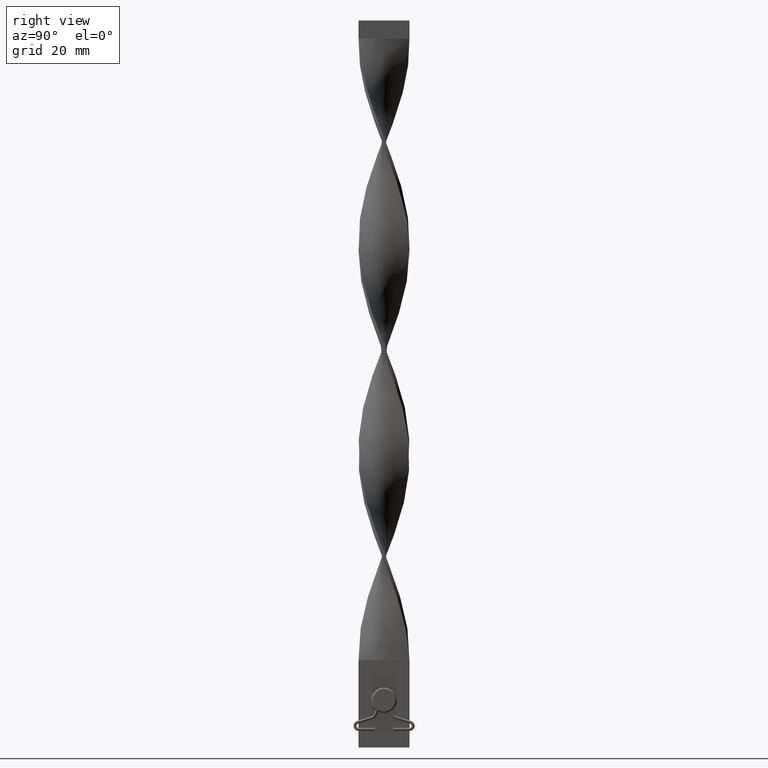
[diagram: clean part render]
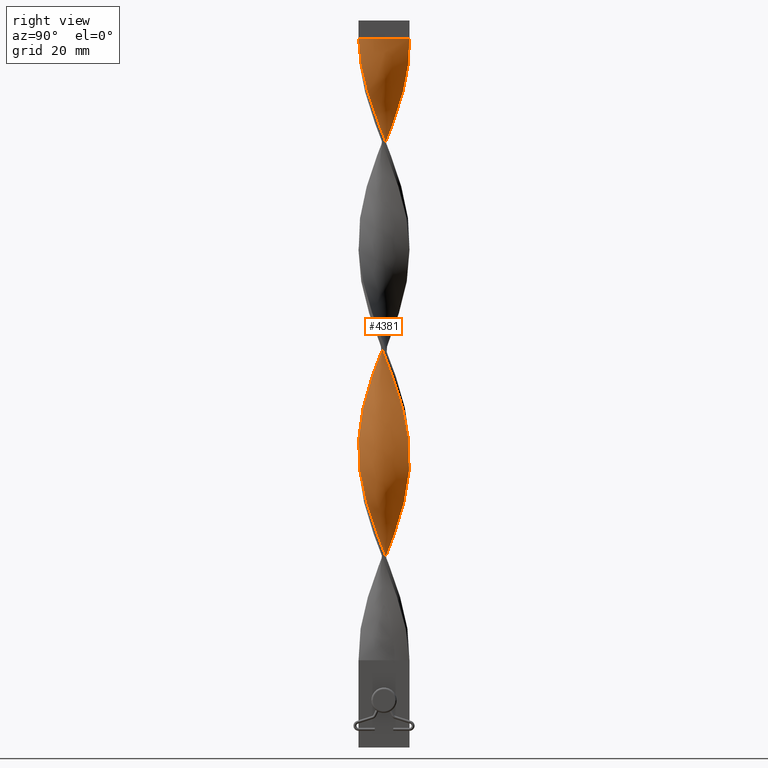
[diagram: same view with one face highlighted and labeled with its STEP entity id]
A machine part, right view. The second image highlights one B-rep face of the part: STEP entity #4381.
In plain terms, the highlighted face is a freeform B-spline surface patch.
Its self-contained STEP definition (entity closure, byte-faithful):
#12 = CARTESIAN_POINT ( 'NONE',  ( 1.707941120174619964, -6.806830182251990990, 191.8333333333333144 ) ) ;
#46 = CARTESIAN_POINT ( 'NONE',  ( 1.333846089643348165, 6.917212388074880813, 142.7499999999999716 ) ) ;
#68 = CARTESIAN_POINT ( 'NONE',  ( 5.040917296989577245, 4.882535489365265491, 39.83333333333332860 ) ) ;
#71 = CARTESIAN_POINT ( 'NONE',  ( 2.514743296130104167, 6.580504446253506501, 145.9166666666666572 ) ) ;
#90 = CARTESIAN_POINT ( 'NONE',  ( -1.333846089643348387, -6.917212388074880813, 85.75000000000000000 ) ) ;
#92 = CARTESIAN_POINT ( 'NONE',  ( -0.5000000000000007772, 7.000000000000000888, 137.9999999999999716 ) ) ;
#97 = ORIENTED_EDGE ( 'NONE', *, *, #4602, .T. ) ;
#98 = CARTESIAN_POINT ( 'NONE',  ( -2.514743296130105943, 6.580504446253503836, 73.08333333333332860 ) ) ;
#114 = CARTESIAN_POINT ( 'NONE',  ( 0.1124206446814672855, 7.043744331762963107, 25.58333333333333215 ) ) ;
#116 = CARTESIAN_POINT ( 'NONE',  ( 1.112420644681468840, -6.956255668237039558, 193.4166666666666572 ) ) ;
#122 = CARTESIAN_POINT ( 'NONE',  ( -6.980478359918920184, -0.7231333671624097237, 49.33333333333333570 ) ) ;
#130 = CARTESIAN_POINT ( 'NONE',  ( -0.1124206446814656618, -7.043744331762963107, 82.58333333333334281 ) ) ;
#133 = CARTESIAN_POINT ( 'NONE',  ( -5.812177826491070398, -3.933012701892223628, 100.0000000000000000 ) ) ;
#142 = CARTESIAN_POINT ( 'NONE',  ( -5.683704906676115165, -4.116491046246286700, 39.83333333333332860 ) ) ;
#151 = CARTESIAN_POINT ( 'NONE',  ( -5.468083801572038105, 4.441512372106930506, 63.58333333333332149 ) ) ;
#158 = CARTESIAN_POINT ( 'NONE',  ( -2.303461595667763984, -6.657404696266944200, 28.75000000000000000 ) ) ;
#172 = CARTESIAN_POINT ( 'NONE',  ( -0.7231333671624116111, 6.980478359918920184, 77.83333333333334281 ) ) ;
#178 = CARTESIAN_POINT ( 'NONE',  ( 5.812177826491070398, -3.933012701892219187, 119.0000000000000000 ) ) ;
#192 = CARTESIAN_POINT ( 'NONE',  ( -6.043851206728636960, 3.619231300085455239, 120.5833333333333144 ) ) ;
#194 = CARTESIAN_POINT ( 'NONE',  ( -6.806830182251990102, 1.707941120174615302, 55.66666666666666430 ) ) ;
#199 = CARTESIAN_POINT ( 'NONE',  ( 1.333846089643349053, -6.917212388074879037, 133.2500000000000000 ) ) ;
#216 = CARTESIAN_POINT ( 'NONE',  ( -4.116491046246284924, -5.683704906676116053, 93.66666666666667140 ) ) ;
#218 = CARTESIAN_POINT ( 'NONE',  ( 6.043851206728633407, 3.619231300085458347, 98.41666666666664298 ) ) ;
#223 = CARTESIAN_POINT ( 'NONE',  ( 5.468083801572036329, -4.441512372106931394, 120.5833333333333144 ) ) ;
#241 = CARTESIAN_POINT ( 'NONE',  ( 6.917212388074880813, -1.333846089643347277, 57.25000000000000000 ) ) ;
#244 = CARTESIAN_POINT ( 'NONE',  ( -4.441512372106931394, -5.468083801572036329, 35.08333333333333570 ) ) ;
#253 = CARTESIAN_POINT ( 'NONE',  ( -6.406838273838524778, 2.863987313672633928, 172.8333333333333144 ) ) ;
#267 = CARTESIAN_POINT ( 'NONE',  ( 2.863987313672637036, -6.406838273838524778, 74.66666666666665719 ) ) ;
#269 = CARTESIAN_POINT ( 'NONE',  ( -5.812177826491071286, 3.933012701892216523, 176.0000000000000000 ) ) ;
#275 = CARTESIAN_POINT ( 'NONE',  ( 5.683704906676114277, 4.116491046246287588, 96.83333333333332860 ) ) ;
#291 = CARTESIAN_POINT ( 'NONE',  ( 6.748858417164194989, -1.924294692886726610, 58.83333333333333570 ) ) ;
#292 = CARTESIAN_POINT ( 'NONE',  ( 5.683704906676116053, -4.116491046246285812, 179.1666666666666572 ) ) ;
#295 = CARTESIAN_POINT ( 'NONE',  ( -4.441512372106931394, -5.468083801572036329, 149.0833333333333144 ) ) ;
#314 = CARTESIAN_POINT ( 'NONE',  ( 1.333846089643348165, 6.917212388074880813, 28.75000000000000000 ) ) ;
#315 = CARTESIAN_POINT ( 'NONE',  ( 6.748858417164194989, -1.924294692886726610, 172.8333333333333144 ) ) ;
#346 = CARTESIAN_POINT ( 'NONE',  ( -6.748858417164191437, -1.924294692886728164, 160.1666666666666572 ) ) ;
#367 = CARTESIAN_POINT ( 'NONE',  ( -6.312177826491068622, -3.066987298107782145, 157.0000000000000000 ) ) ;
#389 = CARTESIAN_POINT ( 'NONE',  ( 0.5000000000000016653, -7.000000000000000888, 194.9999999999999716 ) ) ;
#397 = CARTESIAN_POINT ( 'NONE',  ( -6.748858417164195878, 1.924294692886722613, 115.8333333333333428 ) ) ;
#421 = CARTESIAN_POINT ( 'NONE',  ( 6.406838273838524778, 2.863987313672637036, 160.1666666666666572 ) ) ;
#422 = EDGE_LOOP ( 'NONE', ( #789, #97, #3428, #455 ) ) ;
#427 = CARTESIAN_POINT ( 'NONE',  ( -1.333846089643351496, 6.917212388074878149, 76.25000000000000000 ) ) ;
#442 = CARTESIAN_POINT ( 'NONE',  ( 6.980478359918921960, -0.7231333671624075032, 169.6666666666666572 ) ) ;
#455 = ORIENTED_EDGE ( 'NONE', *, *, #480, .F. ) ;
#461 = CARTESIAN_POINT ( 'NONE',  ( -4.116491046246284924, -5.683704906676116053, 93.66666666666667140 ) ) ;
#463 = CARTESIAN_POINT ( 'NONE',  ( -6.043851206728636960, 3.619231300085454794, 120.5833333333333286 ) ) ;
#470 = CARTESIAN_POINT ( 'NONE',  ( -0.7231333671624116111, 6.980478359918920184, 77.83333333333334281 ) ) ;
#480 = EDGE_CURVE ( 'NONE', #1588, #4142, #3925, .T. ) ;
#487 = CARTESIAN_POINT ( 'NONE',  ( 4.116491046246284924, 5.683704906676116053, 36.66666666666666430 ) ) ;
#489 = CARTESIAN_POINT ( 'NONE',  ( -1.707941120174617744, 6.806830182251991879, 134.8333333333333428 ) ) ;
#496 = CARTESIAN_POINT ( 'NONE',  ( 3.933012701892216523, 5.812177826491071286, 90.50000000000000000 ) ) ;
#504 = CARTESIAN_POINT ( 'NONE',  ( -3.424513031677504316, -6.156271851410103579, 31.91666666666666430 ) ) ;
#511 = CARTESIAN_POINT ( 'NONE',  ( -6.806830182251990102, 1.707941120174615302, 55.66666666666666430 ) ) ;
#520 = CARTESIAN_POINT ( 'NONE',  ( 4.613750792407116386, 5.323558606623596923, 38.24999999999999289 ) ) ;
#522 = CARTESIAN_POINT ( 'NONE',  ( 4.441512372106930506, 5.468083801572038105, 92.08333333333332860 ) ) ;
#529 = CARTESIAN_POINT ( 'NONE',  ( 6.956255668237037781, -1.112420644681464843, 111.0833333333333286 ) ) ;
#544 = CARTESIAN_POINT ( 'NONE',  ( -6.580504446253503836, -2.514743296130105055, 44.58333333333333570 ) ) ;
#550 = CARTESIAN_POINT ( 'NONE',  ( -3.424513031677503871, -6.156271851410103579, 145.9166666666666572 ) ) ;
#564 = CARTESIAN_POINT ( 'NONE',  ( -2.303461595667765316, 6.657404696266945976, 133.2500000000000000 ) ) ;
#566 = CARTESIAN_POINT ( 'NONE',  ( -3.933012701892217411, -5.812177826491071286, 33.50000000000000000 ) ) ;
#572 = CARTESIAN_POINT ( 'NONE',  ( 6.580504446253502060, 2.514743296130109496, 101.5833333333333286 ) ) ;
#590 = CARTESIAN_POINT ( 'NONE',  ( 3.619231300085454794, 6.043851206728636960, 35.08333333333333570 ) ) ;
#591 = CARTESIAN_POINT ( 'NONE',  ( -6.806830182251991879, -1.707941120174617300, 106.3333333333333286 ) ) ;
#593 = CARTESIAN_POINT ( 'NONE',  ( 6.406838273838525666, -2.863987313672629931, 115.8333333333333428 ) ) ;
#598 = CARTESIAN_POINT ( 'NONE',  ( 0.7231333671624095016, -6.980478359918920184, 134.8333333333333428 ) ) ;
#615 = CARTESIAN_POINT ( 'NONE',  ( 7.043744331762962219, -0.1124206446814662030, 54.08333333333332860 ) ) ;
#618 = CARTESIAN_POINT ( 'NONE',  ( 0.7231333671624095016, -6.980478359918920184, 134.8333333333333428 ) ) ;
#626 = CARTESIAN_POINT ( 'NONE',  ( -1.707941120174615302, -6.806830182251990102, 141.1666666666666572 ) ) ;
#639 = CARTESIAN_POINT ( 'NONE',  ( 4.441512372106936724, -5.468083801572035441, 69.91666666666664298 ) ) ;
#642 = CARTESIAN_POINT ( 'NONE',  ( -6.956255668237037781, 1.112420644681466175, 168.0833333333333428 ) ) ;
#661 = CARTESIAN_POINT ( 'NONE',  ( 7.000000000000000888, 0.5000000000000012212, 166.4999999999999716 ) ) ;
#664 = CARTESIAN_POINT ( 'NONE',  ( -4.613750792407117274, 5.323558606623594258, 180.7500000000000000 ) ) ;
#683 = CARTESIAN_POINT ( 'NONE',  ( -3.066987298107778592, -6.312177826491073063, 90.50000000000000000 ) ) ;
#685 = CARTESIAN_POINT ( 'NONE',  ( 5.812177826491071286, 3.933012701892220964, 157.0000000000000000 ) ) ;
#693 = CARTESIAN_POINT ( 'NONE',  ( 0.5000000000000004441, -2.333333333333334814, 194.9999999999999716 ) ) ;
#716 = CARTESIAN_POINT ( 'NONE',  ( -4.882535489365261938, -5.040917296989577245, 150.6666666666666572 ) ) ;
#738 = CARTESIAN_POINT ( 'NONE',  ( 2.863987313672637036, -6.406838273838524778, 188.6666666666666572 ) ) ;
#745 = CARTESIAN_POINT ( 'NONE',  ( -6.806830182251991879, -1.707941120174617300, 106.3333333333333286 ) ) ;
#760 = CARTESIAN_POINT ( 'NONE',  ( 0.5000000000000016653, -7.000000000000000888, 194.9999999999999716 ) ) ;
#764 = CARTESIAN_POINT ( 'NONE',  ( -6.312177826491071286, 3.066987298107781257, 119.0000000000000000 ) ) ;
#788 = CARTESIAN_POINT ( 'NONE',  ( 5.683704906676116053, -4.116491046246285812, 179.1666666666666572 ) ) ;
#789 = ORIENTED_EDGE ( 'NONE', *, *, #1913, .T. ) ;
#804 = B_SPLINE_CURVE_WITH_KNOTS ( 'NONE', 3,
 ( #3128, #693, #1038, #4533 ),
 .UNSPECIFIED., .F., .F.,
 ( 4, 4 ),
 ( 0.000000000000000000, 1.000000000000000000 ),
 .UNSPECIFIED. ) ;
#806 = CARTESIAN_POINT ( 'NONE',  ( 5.683704906676116053, -4.116491046246285812, 65.16666666666667140 ) ) ;
#808 = CARTESIAN_POINT ( 'NONE',  ( -6.657404696266945976, -2.303461595667764872, 104.7500000000000142 ) ) ;
#814 = CARTESIAN_POINT ( 'NONE',  ( 2.303461595667763984, 6.657404696266944200, 85.75000000000000000 ) ) ;
#828 = CARTESIAN_POINT ( 'NONE',  ( 1.707941120174619964, -6.806830182251990990, 77.83333333333334281 ) ) ;
#831 = CARTESIAN_POINT ( 'NONE',  ( -6.956255668237039558, -1.112420644681469284, 107.9166666666666572 ) ) ;
#837 = CARTESIAN_POINT ( 'NONE',  ( -1.112420644681466619, -6.956255668237037781, 25.58333333333333215 ) ) ;
#853 = CARTESIAN_POINT ( 'NONE',  ( 5.468083801572036329, 4.441512372106934059, 41.41666666666667140 ) ) ;
#855 = CARTESIAN_POINT ( 'NONE',  ( -6.956255668237037781, 1.112420644681466175, 54.08333333333332860 ) ) ;
#872 = CARTESIAN_POINT ( 'NONE',  ( 5.812177826491071286, 3.933012701892220964, 43.00000000000000000 ) ) ;
#874 = CARTESIAN_POINT ( 'NONE',  ( 6.956255668237037781, -1.112420644681465065, 111.0833333333333286 ) ) ;
#880 = CARTESIAN_POINT ( 'NONE',  ( 6.312177826491067734, 3.066987298107784365, 100.0000000000000000 ) ) ;
#893 = CARTESIAN_POINT ( 'NONE',  ( 2.303461595667763984, 6.657404696266944200, 85.75000000000000000 ) ) ;
#900 = CARTESIAN_POINT ( 'NONE',  ( 6.980478359918920184, 0.7231333671624092796, 106.3333333333333286 ) ) ;
#919 = CARTESIAN_POINT ( 'NONE',  ( -3.066987298107780813, 6.312177826491069510, 71.50000000000001421 ) ) ;
#924 = CARTESIAN_POINT ( 'NONE',  ( -5.040917296989577245, 4.882535489365262826, 179.1666666666666572 ) ) ;
#941 = CARTESIAN_POINT ( 'NONE',  ( 6.999999999999999112, -0.4999999999999977240, 109.4999999999999858 ) ) ;
#946 = CARTESIAN_POINT ( 'NONE',  ( -6.917212388074879037, -1.333846089643349497, 161.7499999999999716 ) ) ;
#964 = CARTESIAN_POINT ( 'NONE',  ( 6.312177826491072175, -3.066987298107778592, 62.00000000000000000 ) ) ;
#970 = CARTESIAN_POINT ( 'NONE',  ( -6.999999999999999112, 0.4999999999999986122, 166.4999999999999716 ) ) ;
#990 = CARTESIAN_POINT ( 'NONE',  ( 0.1124206446814698945, -7.043744331762961330, 136.4166666666666856 ) ) ;
#1010 = CARTESIAN_POINT ( 'NONE',  ( -2.863987313672633928, -6.406838273838524778, 144.3333333333333428 ) ) ;
#1030 = CARTESIAN_POINT ( 'NONE',  ( 3.933012701892220075, -5.812177826491071286, 71.50000000000001421 ) ) ;
#1034 = CARTESIAN_POINT ( 'NONE',  ( 0.4999999999999981681, 6.999999999999999112, 194.9999999999999716 ) ) ;
#1038 = CARTESIAN_POINT ( 'NONE',  ( 0.4999999999999993339, 2.333333333333333037, 194.9999999999999716 ) ) ;
#1056 = CARTESIAN_POINT ( 'NONE',  ( 4.116491046246284924, 5.683704906676116053, 150.6666666666666572 ) ) ;
#1084 = CARTESIAN_POINT ( 'NONE',  ( 5.040917296989577245, 4.882535489365265491, 153.8333333333333144 ) ) ;
#1109 = CARTESIAN_POINT ( 'NONE',  ( -3.933012701892223628, 5.812177826491069510, 128.5000000000000000 ) ) ;
#1128 = CARTESIAN_POINT ( 'NONE',  ( 0.5000000000000016653, -7.000000000000000888, 80.99999999999998579 ) ) ;
#1130 = CARTESIAN_POINT ( 'NONE',  ( -7.043744331762962219, 0.1124206446814653426, 111.0833333333333286 ) ) ;
#1153 = CARTESIAN_POINT ( 'NONE',  ( 1.333846089643348165, 6.917212388074880813, 28.75000000000000000 ) ) ;
#1156 = CARTESIAN_POINT ( 'NONE',  ( -6.156271851410102691, -3.424513031677510089, 101.5833333333333428 ) ) ;
#1163 = CARTESIAN_POINT ( 'NONE',  ( 0.4999999999999981681, 6.999999999999999112, 80.99999999999998579 ) ) ;
#1174 = CARTESIAN_POINT ( 'NONE',  ( 7.000000000000000888, 0.5000000000000012212, 52.50000000000000000 ) ) ;
#1176 = CARTESIAN_POINT ( 'NONE',  ( 5.812177826491071286, 3.933012701892220964, 157.0000000000000000 ) ) ;
#1194 = CARTESIAN_POINT ( 'NONE',  ( -1.112420644681469728, 6.956255668237039558, 136.4166666666666856 ) ) ;
#1203 = CARTESIAN_POINT ( 'NONE',  ( -4.882535489365261938, -5.040917296989577245, 36.66666666666666430 ) ) ;
#1219 = CARTESIAN_POINT ( 'NONE',  ( 0.7231333671624077253, 6.980478359918921960, 27.16666666666666430 ) ) ;
#1221 = CARTESIAN_POINT ( 'NONE',  ( 0.4999999999999981681, 6.999999999999999112, 80.99999999999998579 ) ) ;
#1227 = CARTESIAN_POINT ( 'NONE',  ( -3.619231300085458791, 6.043851206728633407, 69.91666666666665719 ) ) ;
#1238 = CARTESIAN_POINT ( 'NONE',  ( -4.116491046246287588, 5.683704906676114277, 68.33333333333332860 ) ) ;
#1244 = CARTESIAN_POINT ( 'NONE',  ( -7.043744331762961330, -0.1124206446814702137, 164.9166666666666572 ) ) ;
#1259 = CARTESIAN_POINT ( 'NONE',  ( -3.619231300085458347, 6.043851206728633407, 69.91666666666664298 ) ) ;
#1266 = CARTESIAN_POINT ( 'NONE',  ( -5.468083801572038105, 4.441512372106930506, 177.5833333333333144 ) ) ;
#1285 = CARTESIAN_POINT ( 'NONE',  ( -4.613750792407115497, -5.323558606623597811, 95.25000000000000000 ) ) ;
#1286 = CARTESIAN_POINT ( 'NONE',  ( 1.924294692886726610, 6.748858417164194989, 144.3333333333333428 ) ) ;
#1288 = CARTESIAN_POINT ( 'NONE',  ( 6.917212388074879037, 1.333846089643348609, 104.7500000000000142 ) ) ;
#1297 = CARTESIAN_POINT ( 'NONE',  ( 6.806830182251990990, -1.707941120174612859, 112.6666666666666714 ) ) ;
#1310 = CARTESIAN_POINT ( 'NONE',  ( 4.116491046246284924, 5.683704906676116053, 36.66666666666666430 ) ) ;
#1311 = CARTESIAN_POINT ( 'NONE',  ( -3.933012701892223628, 5.812177826491069510, 128.5000000000000000 ) ) ;
#1318 = CARTESIAN_POINT ( 'NONE',  ( 3.066987298107784365, -6.312177826491066845, 128.5000000000000000 ) ) ;
#1334 = CARTESIAN_POINT ( 'NONE',  ( -6.580504446253507389, 2.514743296130100170, 117.4166666666666714 ) ) ;
#1337 = CARTESIAN_POINT ( 'NONE',  ( -6.657404696266944200, 2.303461595667763095, 171.2499999999999716 ) ) ;
#1342 = CARTESIAN_POINT ( 'NONE',  ( -4.116491046246287588, 5.683704906676114277, 182.3333333333333144 ) ) ;
#1360 = CARTESIAN_POINT ( 'NONE',  ( 3.933012701892220075, -5.812177826491071286, 185.5000000000000000 ) ) ;
#1364 = CARTESIAN_POINT ( 'NONE',  ( -6.580504446253503836, -2.514743296130105055, 158.5833333333333144 ) ) ;
#1383 = CARTESIAN_POINT ( 'NONE',  ( 2.303461595667767980, -6.657404696266944200, 76.25000000000000000 ) ) ;
#1384 = CARTESIAN_POINT ( 'NONE',  ( 7.043744331762963107, -0.1124206446814662030, 168.0833333333333428 ) ) ;
#1386 = CARTESIAN_POINT ( 'NONE',  ( -3.619231300085458347, 6.043851206728633407, 183.9166666666666572 ) ) ;
#1410 = CARTESIAN_POINT ( 'NONE',  ( -6.917212388074879037, -1.333846089643349497, 161.7499999999999716 ) ) ;
#1421 = CARTESIAN_POINT ( 'NONE',  ( -0.4999999999999990563, -6.999999999999999112, 24.00000000000000000 ) ) ;
#1467 = CARTESIAN_POINT ( 'NONE',  ( 5.040917296989577245, 4.882535489365265491, 153.8333333333333144 ) ) ;
#1484 = CARTESIAN_POINT ( 'NONE',  ( 6.043851206728638736, -3.619231300085453906, 63.58333333333332860 ) ) ;
#1487 = CARTESIAN_POINT ( 'NONE',  ( -5.683704906676116941, 4.116491046246284924, 122.1666666666666714 ) ) ;
#1492 = DIRECTION ( 'NONE',  ( 1.239088197126290817E-16, -1.000000000000000000, 0.000000000000000000 ) ) ;
#1494 = CARTESIAN_POINT ( 'NONE',  ( -3.933012701892217411, -5.812177826491071286, 33.50000000000000000 ) ) ;
#1508 = CARTESIAN_POINT ( 'NONE',  ( -0.7231333671624053938, -6.980478359918922848, 84.16666666666667140 ) ) ;
#1510 = CARTESIAN_POINT ( 'NONE',  ( 4.441512372106936724, -5.468083801572035441, 183.9166666666666572 ) ) ;
#1519 = CARTESIAN_POINT ( 'NONE',  ( -6.406838273838524778, 2.863987313672633928, 58.83333333333333570 ) ) ;
#1533 = CARTESIAN_POINT ( 'NONE',  ( 4.441512372106936724, -5.468083801572034552, 69.91666666666665719 ) ) ;
#1535 = CARTESIAN_POINT ( 'NONE',  ( 7.000000000000000888, 0.5000000000000012212, 166.4999999999999716 ) ) ;
#1543 = CARTESIAN_POINT ( 'NONE',  ( -7.043744331762961330, -0.1124206446814702137, 50.91666666666665719 ) ) ;
#1552 = CARTESIAN_POINT ( 'NONE',  ( -5.812177826491070398, -3.933012701892223628, 100.0000000000000000 ) ) ;
#1554 = CARTESIAN_POINT ( 'NONE',  ( 3.424513031677507424, -6.156271851410104468, 187.0833333333333144 ) ) ;
#1562 = CARTESIAN_POINT ( 'NONE',  ( 4.441512372106930506, 5.468083801572038105, 92.08333333333332860 ) ) ;
#1573 = CARTESIAN_POINT ( 'NONE',  ( -6.748858417164191437, -1.924294692886728164, 46.16666666666667140 ) ) ;
#1588 = VERTEX_POINT ( 'NONE', #1636 ) ;
#1596 = CARTESIAN_POINT ( 'NONE',  ( 0.1124206446814672855, 7.043744331762963107, 139.5833333333333428 ) ) ;
#1598 = CARTESIAN_POINT ( 'NONE',  ( 3.424513031677503427, 6.156271851410104468, 88.91666666666667140 ) ) ;
#1603 = CARTESIAN_POINT ( 'NONE',  ( 6.043851206728633407, 3.619231300085458791, 98.41666666666665719 ) ) ;
#1617 = CARTESIAN_POINT ( 'NONE',  ( -6.156271851410104468, 3.424513031677504316, 60.41666666666667140 ) ) ;
#1623 = CARTESIAN_POINT ( 'NONE',  ( -4.882535489365261938, -5.040917296989577245, 150.6666666666666572 ) ) ;
#1636 = CARTESIAN_POINT ( 'NONE',  ( -0.5000000000000007772, 7.000000000000000888, 24.00000000000000000 ) ) ;
#1642 = CARTESIAN_POINT ( 'NONE',  ( 6.956255668237039558, 1.112420644681469950, 50.91666666666665719 ) ) ;
#1643 = CARTESIAN_POINT ( 'NONE',  ( -1.112420644681469728, 6.956255668237039558, 136.4166666666666572 ) ) ;
#1645 = CARTESIAN_POINT ( 'NONE',  ( -2.863987313672633928, -6.406838273838524778, 30.33333333333333215 ) ) ;
#1652 = CARTESIAN_POINT ( 'NONE',  ( 0.1124206446814698945, -7.043744331762961330, 136.4166666666666572 ) ) ;
#1669 = VECTOR ( 'NONE', #1492, 1000.000000000000000 ) ;
#1673 = CARTESIAN_POINT ( 'NONE',  ( 0.5000000000000016653, -7.000000000000000888, 80.99999999999998579 ) ) ;
#1674 = CARTESIAN_POINT ( 'NONE',  ( -5.683704906676116941, 4.116491046246284924, 122.1666666666666714 ) ) ;
#1676 = CARTESIAN_POINT ( 'NONE',  ( -2.303461595667763984, -6.657404696266944200, 28.75000000000000000 ) ) ;
#1684 = CARTESIAN_POINT ( 'NONE',  ( 5.040917296989578134, -4.882535489365261938, 122.1666666666666714 ) ) ;
#1697 = CARTESIAN_POINT ( 'NONE',  ( 4.613750792407116386, 5.323558606623596923, 38.24999999999998579 ) ) ;
#1699 = CARTESIAN_POINT ( 'NONE',  ( -1.112420644681466619, -6.956255668237037781, 139.5833333333333712 ) ) ;
#1704 = CARTESIAN_POINT ( 'NONE',  ( 2.514743296130109496, -6.580504446253502060, 130.0833333333333144 ) ) ;
#1719 = CARTESIAN_POINT ( 'NONE',  ( 5.683704906676116053, -4.116491046246285812, 65.16666666666667140 ) ) ;
#1720 = CARTESIAN_POINT ( 'NONE',  ( 4.882535489365266379, -5.040917296989576357, 182.3333333333333144 ) ) ;
#1723 = CARTESIAN_POINT ( 'NONE',  ( 3.066987298107784365, -6.312177826491066845, 128.5000000000000000 ) ) ;
#1742 = CARTESIAN_POINT ( 'NONE',  ( 3.066987298107779925, 6.312177826491072175, 33.50000000000000000 ) ) ;
#1746 = CARTESIAN_POINT ( 'NONE',  ( 2.514743296130109051, -6.580504446253502060, 130.0833333333333144 ) ) ;
#1754 = CARTESIAN_POINT ( 'NONE',  ( 0.4999999999999981681, 6.999999999999999112, 194.9999999999999716 ) ) ;
#1768 = CARTESIAN_POINT ( 'NONE',  ( 6.980478359918921960, -0.7231333671624075032, 169.6666666666666572 ) ) ;
#1791 = CARTESIAN_POINT ( 'NONE',  ( 3.066987298107779925, 6.312177826491072175, 147.5000000000000000 ) ) ;
#1817 = CARTESIAN_POINT ( 'NONE',  ( 6.956255668237039558, 1.112420644681469950, 164.9166666666666572 ) ) ;
#1825 = CARTESIAN_POINT ( 'NONE',  ( -2.863987313672641033, 6.406838273838523001, 131.6666666666666572 ) ) ;
#1849 = CARTESIAN_POINT ( 'NONE',  ( 6.917212388074880813, -1.333846089643347277, 171.2499999999999716 ) ) ;
#1869 = CARTESIAN_POINT ( 'NONE',  ( 6.657404696266945976, 2.303461595667765760, 47.75000000000000000 ) ) ;
#1872 = CARTESIAN_POINT ( 'NONE',  ( 6.312177826491072175, -3.066987298107778592, 176.0000000000000000 ) ) ;
#1878 = CARTESIAN_POINT ( 'NONE',  ( -5.468083801572038105, 4.441512372106930506, 63.58333333333332860 ) ) ;
#1892 = CARTESIAN_POINT ( 'NONE',  ( -2.514743296130103278, -6.580504446253507389, 88.91666666666667140 ) ) ;
#1894 = CARTESIAN_POINT ( 'NONE',  ( 2.303461595667767980, -6.657404696266944200, 190.2499999999999432 ) ) ;
#1901 = CARTESIAN_POINT ( 'NONE',  ( 1.112420644681465287, 6.956255668237037781, 82.58333333333334281 ) ) ;
#1913 = EDGE_CURVE ( 'NONE', #1588, #2193, #2334, .T. ) ;
#1916 = CARTESIAN_POINT ( 'NONE',  ( 0.7231333671624077253, 6.980478359918921960, 141.1666666666666572 ) ) ;
#1922 = CARTESIAN_POINT ( 'NONE',  ( -6.956255668237037781, 1.112420644681465953, 54.08333333333332860 ) ) ;
#1932 = CARTESIAN_POINT ( 'NONE',  ( -7.043744331762961330, -0.1124206446814702137, 50.91666666666665719 ) ) ;
#1940 = CARTESIAN_POINT ( 'NONE',  ( -5.812177826491071286, 3.933012701892216523, 62.00000000000000000 ) ) ;
#1952 = CARTESIAN_POINT ( 'NONE',  ( 4.613750792407118162, -5.323558606623593370, 123.7500000000000000 ) ) ;
#1958 = CARTESIAN_POINT ( 'NONE',  ( 6.156271851410107132, -3.424513031677500763, 117.4166666666666714 ) ) ;
#1974 = CARTESIAN_POINT ( 'NONE',  ( -6.917212388074881702, 1.333846089643344834, 114.2499999999999858 ) ) ;
#1976 = CARTESIAN_POINT ( 'NONE',  ( -1.112420644681466619, -6.956255668237037781, 25.58333333333333215 ) ) ;
#1982 = CARTESIAN_POINT ( 'NONE',  ( -0.7231333671624116111, 6.980478359918920184, 191.8333333333333144 ) ) ;
#1999 = CARTESIAN_POINT ( 'NONE',  ( -4.882535489365267267, 5.040917296989574581, 125.3333333333333286 ) ) ;
#2001 = CARTESIAN_POINT ( 'NONE',  ( 4.882535489365261938, 5.040917296989577245, 93.66666666666667140 ) ) ;
#2006 = CARTESIAN_POINT ( 'NONE',  ( 6.657404696266945088, -2.303461595667760431, 114.2499999999999858 ) ) ;
#2022 = CARTESIAN_POINT ( 'NONE',  ( 6.657404696266945976, 2.303461595667765760, 47.75000000000000000 ) ) ;
#2023 = CARTESIAN_POINT ( 'NONE',  ( -7.043744331762963107, 0.1124206446814653426, 111.0833333333333286 ) ) ;
#2025 = CARTESIAN_POINT ( 'NONE',  ( 3.933012701892216523, 5.812177826491071286, 90.50000000000000000 ) ) ;
#2030 = CARTESIAN_POINT ( 'NONE',  ( -1.112420644681466619, -6.956255668237037781, 139.5833333333333428 ) ) ;
#2047 = CARTESIAN_POINT ( 'NONE',  ( 6.980478359918921960, -0.7231333671624075032, 55.66666666666666430 ) ) ;
#2049 = CARTESIAN_POINT ( 'NONE',  ( -7.043744331762961330, -0.1124206446814702137, 164.9166666666666572 ) ) ;
#2056 = CARTESIAN_POINT ( 'NONE',  ( -6.657404696266944200, 2.303461595667763095, 171.2499999999999716 ) ) ;
#2070 = CARTESIAN_POINT ( 'NONE',  ( -0.7231333671624116111, 6.980478359918920184, 191.8333333333333144 ) ) ;
#2091 = CARTESIAN_POINT ( 'NONE',  ( 6.043851206728638736, -3.619231300085453906, 177.5833333333333144 ) ) ;
#2114 = CARTESIAN_POINT ( 'NONE',  ( 6.312177826491072175, -3.066987298107778592, 176.0000000000000000 ) ) ;
#2118 = CARTESIAN_POINT ( 'NONE',  ( -2.303461595667763984, -6.657404696266944200, 142.7499999999999716 ) ) ;
#2138 = CARTESIAN_POINT ( 'NONE',  ( 6.917212388074880813, -1.333846089643347277, 171.2499999999999716 ) ) ;
#2161 = CARTESIAN_POINT ( 'NONE',  ( 1.112420644681468840, -6.956255668237039558, 193.4166666666666572 ) ) ;
#2169 = CARTESIAN_POINT ( 'NONE',  ( -6.580504446253507389, 2.514743296130100170, 117.4166666666666714 ) ) ;
#2192 = CARTESIAN_POINT ( 'NONE',  ( 6.156271851410104468, 3.424513031677506980, 158.5833333333333144 ) ) ;
#2193 = VERTEX_POINT ( 'NONE', #1421 ) ;
#2210 = CARTESIAN_POINT ( 'NONE',  ( 1.112420644681468840, -6.956255668237039558, 79.41666666666665719 ) ) ;
#2212 = CARTESIAN_POINT ( 'NONE',  ( 6.657404696266945976, 2.303461595667765760, 161.7499999999999716 ) ) ;
#2218 = CARTESIAN_POINT ( 'NONE',  ( -6.156271851410104468, 3.424513031677503871, 60.41666666666666430 ) ) ;
#2231 = CARTESIAN_POINT ( 'NONE',  ( -3.066987298107778592, -6.312177826491073063, 90.50000000000000000 ) ) ;
#2234 = CARTESIAN_POINT ( 'NONE',  ( 4.882535489365266379, -5.040917296989576357, 182.3333333333333144 ) ) ;
#2240 = CARTESIAN_POINT ( 'NONE',  ( 2.863987313672633483, 6.406838273838524778, 87.33333333333331439 ) ) ;
#2251 = CARTESIAN_POINT ( 'NONE',  ( -5.040917296989576357, -4.882535489365266379, 96.83333333333332860 ) ) ;
#2253 = CARTESIAN_POINT ( 'NONE',  ( -2.303461595667765316, 6.657404696266945976, 133.2500000000000000 ) ) ;
#2278 = CARTESIAN_POINT ( 'NONE',  ( 6.657404696266945088, -2.303461595667760431, 114.2499999999999858 ) ) ;
#2284 = CARTESIAN_POINT ( 'NONE',  ( -6.657404696266944200, 2.303461595667763095, 57.25000000000000000 ) ) ;
#2291 = CARTESIAN_POINT ( 'NONE',  ( 6.406838273838524778, 2.863987313672637036, 46.16666666666667140 ) ) ;
#2293 = CARTESIAN_POINT ( 'NONE',  ( -1.333846089643351496, 6.917212388074878149, 76.25000000000000000 ) ) ;
#2299 = CARTESIAN_POINT ( 'NONE',  ( -4.441512372106931394, -5.468083801572036329, 149.0833333333333144 ) ) ;
#2311 = CARTESIAN_POINT ( 'NONE',  ( -6.980478359918922848, 0.7231333671624050607, 112.6666666666666714 ) ) ;
#2313 = CARTESIAN_POINT ( 'NONE',  ( 1.707941120174613303, 6.806830182251990990, 84.16666666666667140 ) ) ;
#2319 = CARTESIAN_POINT ( 'NONE',  ( 6.748858417164191437, 1.924294692886732161, 103.1666666666666572 ) ) ;
#2334 = LINE ( 'NONE', #3750, #1669 ) ;
#2336 = CARTESIAN_POINT ( 'NONE',  ( -7.000000000000000888, -0.5000000000000021094, 109.4999999999999858 ) ) ;
#2338 = CARTESIAN_POINT ( 'NONE',  ( -2.514743296130105499, 6.580504446253503836, 73.08333333333334281 ) ) ;
#2343 = CARTESIAN_POINT ( 'NONE',  ( -2.514743296130105943, 6.580504446253503836, 187.0833333333333144 ) ) ;
#2361 = CARTESIAN_POINT ( 'NONE',  ( -6.406838273838524778, 2.863987313672633928, 58.83333333333333570 ) ) ;
#2366 = CARTESIAN_POINT ( 'NONE',  ( -6.956255668237037781, 1.112420644681465953, 168.0833333333333428 ) ) ;
#2385 = CARTESIAN_POINT ( 'NONE',  ( 2.514743296130104167, 6.580504446253506501, 31.91666666666666430 ) ) ;
#2386 = CARTESIAN_POINT ( 'NONE',  ( -6.406838273838523889, -2.863987313672640589, 103.1666666666666572 ) ) ;
#2392 = CARTESIAN_POINT ( 'NONE',  ( -6.156271851410104468, 3.424513031677503871, 174.4166666666666288 ) ) ;
#2410 = CARTESIAN_POINT ( 'NONE',  ( 7.000000000000000888, 0.5000000000000012212, 52.50000000000000000 ) ) ;
#2412 = CARTESIAN_POINT ( 'NONE',  ( -6.406838273838524778, 2.863987313672633928, 172.8333333333333144 ) ) ;
#2428 = CARTESIAN_POINT ( 'NONE',  ( 5.812177826491071286, 3.933012701892220964, 43.00000000000000000 ) ) ;
#2429 = CARTESIAN_POINT ( 'NONE',  ( 2.303461595667767980, -6.657404696266944200, 190.2499999999999716 ) ) ;
#2431 = CARTESIAN_POINT ( 'NONE',  ( -4.116491046246287588, 5.683704906676114277, 182.3333333333333144 ) ) ;
#2451 = CARTESIAN_POINT ( 'NONE',  ( -1.924294692886726166, -6.748858417164194989, 87.33333333333331439 ) ) ;
#2455 = CARTESIAN_POINT ( 'NONE',  ( 3.619231300085459235, -6.043851206728633407, 126.9166666666666714 ) ) ;
#2506 = CARTESIAN_POINT ( 'NONE',  ( 5.468083801572036329, 4.441512372106934059, 155.4166666666666572 ) ) ;
#2526 = CARTESIAN_POINT ( 'NONE',  ( 3.424513031677506980, -6.156271851410104468, 187.0833333333333144 ) ) ;
#2533 = CARTESIAN_POINT ( 'NONE',  ( 4.116491046246284924, 5.683704906676116053, 150.6666666666666572 ) ) ;
#2550 = CARTESIAN_POINT ( 'NONE',  ( 4.882535489365266379, -5.040917296989576357, 68.33333333333332860 ) ) ;
#2553 = CARTESIAN_POINT ( 'NONE',  ( 0.1124206446814672855, 7.043744331762962219, 139.5833333333333712 ) ) ;
#2562 = CARTESIAN_POINT ( 'NONE',  ( -5.323558606623595146, -4.613750792407116386, 38.24999999999999289 ) ) ;
#2573 = CARTESIAN_POINT ( 'NONE',  ( 6.312177826491072175, -3.066987298107778592, 62.00000000000000000 ) ) ;
#2575 = CARTESIAN_POINT ( 'NONE',  ( -5.323558606623597811, 4.613750792407114609, 123.7500000000000000 ) ) ;
#2583 = CARTESIAN_POINT ( 'NONE',  ( 1.707941120174613303, 6.806830182251990990, 84.16666666666667140 ) ) ;
#2594 = CARTESIAN_POINT ( 'NONE',  ( 6.748858417164194989, -1.924294692886726610, 58.83333333333333570 ) ) ;
#2597 = CARTESIAN_POINT ( 'NONE',  ( -6.917212388074881702, 1.333846089643344834, 114.2499999999999858 ) ) ;
#2616 = CARTESIAN_POINT ( 'NONE',  ( 6.956255668237039558, 1.112420644681469950, 50.91666666666665719 ) ) ;
#2618 = CARTESIAN_POINT ( 'NONE',  ( -6.043851206728635184, -3.619231300085455239, 41.41666666666667140 ) ) ;
#2627 = CARTESIAN_POINT ( 'NONE',  ( -6.043851206728635184, -3.619231300085455683, 41.41666666666667140 ) ) ;
#2638 = CARTESIAN_POINT ( 'NONE',  ( -0.5000000000000007772, 7.000000000000000888, 24.00000000000000000 ) ) ;
#2640 = CARTESIAN_POINT ( 'NONE',  ( 2.863987313672633483, 6.406838273838524778, 87.33333333333331439 ) ) ;
#2659 = CARTESIAN_POINT ( 'NONE',  ( -5.040917296989577245, 4.882535489365262826, 65.16666666666667140 ) ) ;
#2665 = CARTESIAN_POINT ( 'NONE',  ( 1.924294692886732605, -6.748858417164190548, 131.6666666666666572 ) ) ;
#2682 = CARTESIAN_POINT ( 'NONE',  ( -6.657404696266944200, 2.303461595667763095, 57.25000000000000000 ) ) ;
#2691 = CARTESIAN_POINT ( 'NONE',  ( -3.066987298107780813, 6.312177826491069510, 185.5000000000000000 ) ) ;
#2708 = CARTESIAN_POINT ( 'NONE',  ( 2.514743296130104611, 6.580504446253506501, 145.9166666666666572 ) ) ;
#2710 = CARTESIAN_POINT ( 'NONE',  ( 6.580504446253502060, 2.514743296130109051, 101.5833333333333428 ) ) ;
#2715 = CARTESIAN_POINT ( 'NONE',  ( -6.748858417164191437, -1.924294692886728164, 160.1666666666666572 ) ) ;
#2732 = CARTESIAN_POINT ( 'NONE',  ( 6.580504446253507389, -2.514743296130103722, 60.41666666666667140 ) ) ;
#2733 = CARTESIAN_POINT ( 'NONE',  ( -3.424513031677510533, 6.156271851410102691, 130.0833333333333144 ) ) ;
#2742 = CARTESIAN_POINT ( 'NONE',  ( -0.4999999999999990563, -6.999999999999999112, 137.9999999999999716 ) ) ;
#2756 = CARTESIAN_POINT ( 'NONE',  ( -5.323558606623597811, 4.613750792407114609, 123.7500000000000000 ) ) ;
#2758 = CARTESIAN_POINT ( 'NONE',  ( -5.468083801572038105, 4.441512372106930506, 177.5833333333333144 ) ) ;
#2780 = CARTESIAN_POINT ( 'NONE',  ( 1.112420644681468840, -6.956255668237039558, 79.41666666666665719 ) ) ;
#2784 = CARTESIAN_POINT ( 'NONE',  ( -6.999999999999999112, 0.4999999999999986122, 166.4999999999999716 ) ) ;
#2802 = CARTESIAN_POINT ( 'NONE',  ( 3.424513031677507424, -6.156271851410104468, 73.08333333333334281 ) ) ;
#2803 = CARTESIAN_POINT ( 'NONE',  ( 3.619231300085455239, 6.043851206728636960, 149.0833333333333144 ) ) ;
#2806 = CARTESIAN_POINT ( 'NONE',  ( -5.683704906676115165, -4.116491046246286700, 153.8333333333333144 ) ) ;
#2830 = CARTESIAN_POINT ( 'NONE',  ( 6.406838273838524778, 2.863987313672637036, 160.1666666666666572 ) ) ;
#2882 = CARTESIAN_POINT ( 'NONE',  ( -5.040917296989576357, -4.882535489365266379, 96.83333333333332860 ) ) ;
#2900 = CARTESIAN_POINT ( 'NONE',  ( 3.424513031677506980, -6.156271851410104468, 73.08333333333332860 ) ) ;
#2903 = CARTESIAN_POINT ( 'NONE',  ( 5.468083801572036329, 4.441512372106934059, 155.4166666666666856 ) ) ;
#2909 = CARTESIAN_POINT ( 'NONE',  ( -4.613750792407117274, 5.323558606623594258, 66.75000000000000000 ) ) ;
#2924 = CARTESIAN_POINT ( 'NONE',  ( -1.924294692886726166, -6.748858417164194989, 87.33333333333331439 ) ) ;
#2926 = CARTESIAN_POINT ( 'NONE',  ( 3.933012701892220075, -5.812177826491071286, 185.5000000000000000 ) ) ;
#2935 = CARTESIAN_POINT ( 'NONE',  ( -6.999999999999999112, 0.4999999999999986122, 52.50000000000000000 ) ) ;
#2945 = CARTESIAN_POINT ( 'NONE',  ( -4.613750792407115497, -5.323558606623597811, 95.25000000000000000 ) ) ;
#2949 = CARTESIAN_POINT ( 'NONE',  ( 6.748858417164194989, -1.924294692886726610, 172.8333333333333144 ) ) ;
#2967 = CARTESIAN_POINT ( 'NONE',  ( -6.156271851410102691, -3.424513031677510089, 101.5833333333333286 ) ) ;
#2970 = CARTESIAN_POINT ( 'NONE',  ( 0.5000000000000016653, -7.000000000000000888, 194.9999999999999716 ) ) ;
#2986 = CARTESIAN_POINT ( 'NONE',  ( 6.156271851410104468, 3.424513031677506536, 44.58333333333333570 ) ) ;
#2988 = CARTESIAN_POINT ( 'NONE',  ( -1.924294692886728608, 6.748858417164191437, 74.66666666666665719 ) ) ;
#3009 = CARTESIAN_POINT ( 'NONE',  ( -6.999999999999999112, 0.4999999999999986122, 52.50000000000000000 ) ) ;
#3016 = CARTESIAN_POINT ( 'NONE',  ( -5.323558606623595146, -4.613750792407116386, 152.2500000000000000 ) ) ;
#3030 = CARTESIAN_POINT ( 'NONE',  ( -5.323558606623595146, -4.613750792407116386, 38.24999999999998579 ) ) ;
#3036 = CARTESIAN_POINT ( 'NONE',  ( -0.1124206446814690341, 7.043744331762961330, 193.4166666666666572 ) ) ;
#3050 = CARTESIAN_POINT ( 'NONE',  ( 5.040917296989577245, 4.882535489365265491, 39.83333333333332860 ) ) ;
#3051 = CARTESIAN_POINT ( 'NONE',  ( -0.5000000000000007772, 7.000000000000000888, 137.9999999999999716 ) ) ;
#3053 = CARTESIAN_POINT ( 'NONE',  ( 6.312177826491067734, 3.066987298107784365, 100.0000000000000000 ) ) ;
#3062 = CARTESIAN_POINT ( 'NONE',  ( -2.863987313672633928, -6.406838273838524778, 144.3333333333333428 ) ) ;
#3079 = CARTESIAN_POINT ( 'NONE',  ( -1.333846089643348387, -6.917212388074880813, 85.75000000000000000 ) ) ;
#3081 = CARTESIAN_POINT ( 'NONE',  ( 5.683704906676114277, 4.116491046246287588, 96.83333333333332860 ) ) ;
#3087 = CARTESIAN_POINT ( 'NONE',  ( 6.917212388074879037, 1.333846089643348609, 104.7500000000000142 ) ) ;
#3100 = CARTESIAN_POINT ( 'NONE',  ( 5.468083801572036329, 4.441512372106934059, 41.41666666666667140 ) ) ;
#3101 = CARTESIAN_POINT ( 'NONE',  ( -6.956255668237039558, -1.112420644681469284, 107.9166666666666572 ) ) ;
#3103 = CARTESIAN_POINT ( 'NONE',  ( -1.707941120174615302, -6.806830182251990102, 141.1666666666666572 ) ) ;
#3108 = CARTESIAN_POINT ( 'NONE',  ( 7.043744331762961330, 0.1124206446814694643, 107.9166666666666572 ) ) ;
#3121 = CARTESIAN_POINT ( 'NONE',  ( 4.882535489365266379, -5.040917296989576357, 68.33333333333332860 ) ) ;
#3122 = CARTESIAN_POINT ( 'NONE',  ( 4.441512372106936724, -5.468083801572034552, 183.9166666666666572 ) ) ;
#3125 = CARTESIAN_POINT ( 'NONE',  ( -6.043851206728635184, -3.619231300085455239, 155.4166666666666856 ) ) ;
#3128 = CARTESIAN_POINT ( 'NONE',  ( 0.5000000000000016653, -7.000000000000000888, 194.9999999999999716 ) ) ;
#3150 = CARTESIAN_POINT ( 'NONE',  ( 6.806830182251991879, 1.707941120174617744, 49.33333333333333570 ) ) ;
#3151 = CARTESIAN_POINT ( 'NONE',  ( 6.580504446253507389, -2.514743296130103722, 174.4166666666666288 ) ) ;
#3156 = CARTESIAN_POINT ( 'NONE',  ( -6.980478359918920184, -0.7231333671624097237, 163.3333333333333428 ) ) ;
#3198 = CARTESIAN_POINT ( 'NONE',  ( 4.613750792407116386, 5.323558606623596923, 152.2500000000000000 ) ) ;
#3231 = CARTESIAN_POINT ( 'NONE',  ( -4.882535489365267267, 5.040917296989574581, 125.3333333333333286 ) ) ;
#3250 = CARTESIAN_POINT ( 'NONE',  ( 5.323558606623596923, -4.613750792407115497, 66.75000000000000000 ) ) ;
#3252 = CARTESIAN_POINT ( 'NONE',  ( 6.580504446253507389, -2.514743296130103722, 174.4166666666666288 ) ) ;
#3259 = CARTESIAN_POINT ( 'NONE',  ( -3.424513031677503871, -6.156271851410103579, 31.91666666666666430 ) ) ;
#3264 = CARTESIAN_POINT ( 'NONE',  ( -5.040917296989577245, 4.882535489365262826, 179.1666666666666572 ) ) ;
#3274 = CARTESIAN_POINT ( 'NONE',  ( 3.933012701892220075, -5.812177826491071286, 71.50000000000001421 ) ) ;
#3276 = CARTESIAN_POINT ( 'NONE',  ( 5.323558606623596923, -4.613750792407115497, 180.7500000000000000 ) ) ;
#3282 = CARTESIAN_POINT ( 'NONE',  ( -3.066987298107780813, 6.312177826491069510, 71.50000000000001421 ) ) ;
#3302 = CARTESIAN_POINT ( 'NONE',  ( 2.514743296130104611, 6.580504446253506501, 31.91666666666666430 ) ) ;
#3304 = CARTESIAN_POINT ( 'NONE',  ( 1.707941120174619964, -6.806830182251990990, 191.8333333333333144 ) ) ;
#3321 = CARTESIAN_POINT ( 'NONE',  ( 3.066987298107779925, 6.312177826491072175, 33.50000000000000000 ) ) ;
#3323 = CARTESIAN_POINT ( 'NONE',  ( 4.613750792407116386, 5.323558606623596923, 152.2500000000000000 ) ) ;
#3331 = CARTESIAN_POINT ( 'NONE',  ( -2.863987313672633928, -6.406838273838524778, 30.33333333333333215 ) ) ;
#3343 = CARTESIAN_POINT ( 'NONE',  ( -4.882535489365261938, -5.040917296989577245, 36.66666666666666430 ) ) ;
#3362 = CARTESIAN_POINT ( 'NONE',  ( 0.7231333671624077253, 6.980478359918921960, 141.1666666666666572 ) ) ;
#3364 = CARTESIAN_POINT ( 'NONE',  ( 4.116491046246288477, -5.683704906676113389, 125.3333333333333286 ) ) ;
#3371 = CARTESIAN_POINT ( 'NONE',  ( 5.323558606623594258, 4.613750792407117274, 95.25000000000000000 ) ) ;
#3383 = CARTESIAN_POINT ( 'NONE',  ( -6.312177826491071286, 3.066987298107781257, 119.0000000000000000 ) ) ;
#3385 = CARTESIAN_POINT ( 'NONE',  ( -6.312177826491068622, -3.066987298107782145, 43.00000000000000000 ) ) ;
#3390 = CARTESIAN_POINT ( 'NONE',  ( -3.933012701892217411, -5.812177826491071286, 147.5000000000000000 ) ) ;
#3406 = CARTESIAN_POINT ( 'NONE',  ( -3.619231300085453462, -6.043851206728638736, 92.08333333333332860 ) ) ;
#3407 = CARTESIAN_POINT ( 'NONE',  ( -1.707941120174617744, 6.806830182251991879, 134.8333333333333428 ) ) ;
#3409 = CARTESIAN_POINT ( 'NONE',  ( 1.112420644681465509, 6.956255668237037781, 82.58333333333334281 ) ) ;
#3415 = CARTESIAN_POINT ( 'NONE',  ( 6.406838273838525666, -2.863987313672629931, 115.8333333333333428 ) ) ;
#3428 = ORIENTED_EDGE ( 'NONE', *, *, #3934, .F. ) ;
#3432 = CARTESIAN_POINT ( 'NONE',  ( -0.5000000000000007772, 7.000000000000000888, 24.00000000000000000 ) ) ;
#3434 = CARTESIAN_POINT ( 'NONE',  ( 6.156271851410107132, -3.424513031677500763, 117.4166666666666714 ) ) ;
#3444 = CARTESIAN_POINT ( 'NONE',  ( -6.043851206728635184, -3.619231300085455683, 155.4166666666666572 ) ) ;
#3458 = CARTESIAN_POINT ( 'NONE',  ( 5.323558606623596923, -4.613750792407115497, 66.75000000000000000 ) ) ;
#3459 = CARTESIAN_POINT ( 'NONE',  ( -6.657404696266945976, -2.303461595667764872, 104.7500000000000142 ) ) ;
#3461 = CARTESIAN_POINT ( 'NONE',  ( -6.806830182251990102, 1.707941120174615302, 169.6666666666666572 ) ) ;
#3467 = CARTESIAN_POINT ( 'NONE',  ( 3.619231300085459679, -6.043851206728633407, 126.9166666666666714 ) ) ;
#3486 = CARTESIAN_POINT ( 'NONE',  ( -0.4999999999999990563, -6.999999999999999112, 137.9999999999999716 ) ) ;
#3508 = CARTESIAN_POINT ( 'NONE',  ( 1.924294692886732605, -6.748858417164190548, 131.6666666666666572 ) ) ;
#3535 = CARTESIAN_POINT ( 'NONE',  ( -6.156271851410104468, 3.424513031677504316, 174.4166666666666288 ) ) ;
#3559 = CARTESIAN_POINT ( 'NONE',  ( -1.333846089643351496, 6.917212388074878149, 190.2499999999999432 ) ) ;
#3578 = CARTESIAN_POINT ( 'NONE',  ( 6.156271851410104468, 3.424513031677506536, 158.5833333333333144 ) ) ;
#3586 = CARTESIAN_POINT ( 'NONE',  ( -6.980478359918922848, 0.7231333671624050607, 112.6666666666666714 ) ) ;
#3610 = CARTESIAN_POINT ( 'NONE',  ( 6.806830182251991879, 1.707941120174617744, 163.3333333333333428 ) ) ;
#3617 = CARTESIAN_POINT ( 'NONE',  ( -4.441512372106931394, -5.468083801572036329, 35.08333333333333570 ) ) ;
#3622 =( BOUNDED_SURFACE ( )  B_SPLINE_SURFACE ( 1, 2, ( 
 ( #3432, #3854, #3782, #314, #4478, #2385, #1742, #590, #1310, #1697, #3050, #3100, #2428, #3807, #4528, #2022, #3150, #1642, #2410, #615, #2047, #241, #291, #2732, #964, #4574, #1719, #3458, #3121, #639, #1030, #2802, #267, #1383, #4548, #2780, #1673, #4210, #4231, #3079, #2451, #3877, #683, #3406, #216, #1285, #2882, #3675, #133, #1156, #4353, #808, #745, #831, #3939, #1130, #3586, #2597, #397, #2169, #764, #463, #1487, #2575, #3231, #4006, #1109, #4308, #1825, #2253, #489, #1194, #92, #2553, #1916, #46, #4026, #71, #3960, #4376, #2533, #3323, #1467, #2903, #1176, #2192, #421, #2212, #3610, #3628, #1535, #4328, #442, #1849, #2949, #3252, #1872, #3984, #788, #3276, #2234, #1510, #2926, #1554, #3653, #1894, #3304, #116, #2970 ),
 ( #4394, #1976, #3693, #1676, #1645, #504, #566, #244, #3343, #3030, #4109, #2618, #3385, #544, #1573, #4086, #4457, #1932, #3009, #855, #194, #2682, #2361, #1617, #4436, #151, #2659, #3755, #1238, #1259, #919, #2338, #2988, #2293, #172, #4417, #1221, #3409, #2313, #893, #2640, #1598, #2025, #522, #2001, #3729, #3081, #218, #3053, #2710, #4482, #1288, #4068, #4138, #941, #874, #3784, #2278, #593, #3434, #4507, #4048, #3711, #1952, #3364, #2455, #1723, #1746, #3508, #4577, #618, #990, #3486, #1699, #3103, #2118, #1010, #4552, #4530, #295, #716, #3837, #2806, #3125, #367, #1364, #346, #1410, #3156, #2049, #2784, #642, #3461, #1337, #2412, #3535, #269, #2758, #3264, #664, #2431, #1386, #4234, #4188, #4214, #3559, #2070, #3880, #1034 ) ),
 .UNSPECIFIED., .F., .F., .F. ) 
 B_SPLINE_SURFACE_WITH_KNOTS ( ( 2, 2 ),
 ( 3, 2, 2, 2, 2, 2, 2, 2, 2, 2, 2, 2, 2, 2, 2, 2, 2, 2, 2, 2, 2, 2, 2, 2, 2, 2, 2, 2, 2, 2, 2, 2, 2, 2, 2, 2, 2, 2, 2, 2, 2, 2, 2, 2, 2, 2, 2, 2, 2, 2, 2, 2, 2, 2, 3 ),
 ( 0.000000000000000000, 1.000000000000000000 ),
 ( 0.000000000000000000, 0.01388888888888888812, 0.02777777777777777624, 0.04166666666666666435, 0.05555555555555555247, 0.06944444444444444753, 0.08333333333333332871, 0.09722222222222222376, 0.1111111111111111049, 0.1250000000000000000, 0.1388888888888888951, 0.1527777777777777901, 0.1666666666666666574, 0.1805555555555555525, 0.1944444444444444475, 0.2083333333333333426, 0.2222222222222222099, 0.2361111111111111049, 0.2500000000000000000, 0.2638888888888888951, 0.2777777777777777901, 0.2916666666666666852, 0.3055555555555555802, 0.3194444444444444198, 0.3333333333333333148, 0.3472222222222222099, 0.3611111111111111049, 0.3750000000000000000, 0.3888888888888888951, 0.4027777777777777901, 0.4166666666666666852, 0.4305555555555555802, 0.4444444444444444198, 0.4583333333333333148, 0.4722222222222222099, 0.4861111111111111049, 0.5000000000000000000, 0.5138888888888888395, 0.5277777777777777901, 0.5416666666666666297, 0.5555555555555555802, 0.5694444444444444198, 0.5833333333333333703, 0.5972222222222222099, 0.6111111111111111605, 0.6250000000000000000, 0.6388888888888888395, 0.6527777777777777901, 0.6666666666666666297, 0.6805555555555555802, 0.6944444444444444198, 0.7083333333333333703, 0.7222222222222222099, 0.7361111111111111605, 0.7500000000000000000 ),
 .UNSPECIFIED. ) 
 GEOMETRIC_REPRESENTATION_ITEM ( )  RATIONAL_B_SPLINE_SURFACE ( (
 ( 1.000000000000000000, 0.9961946980917455452, 1.000000000000000000, 0.9961946980917455452, 1.000000000000000000, 0.9961946980917455452, 1.000000000000000000, 0.9961946980917455452, 1.000000000000000000, 0.9961946980917455452, 1.000000000000000000, 0.9961946980917455452, 1.000000000000000000, 0.9961946980917455452, 1.000000000000000000, 0.9961946980917455452, 1.000000000000000000, 0.9961946980917455452, 1.000000000000000000, 0.9961946980917455452, 1.000000000000000000, 0.9961946980917455452, 1.000000000000000000, 0.9961946980917455452, 1.000000000000000000, 0.9961946980917455452, 1.000000000000000000, 0.9961946980917455452, 1.000000000000000000, 0.9961946980917455452, 1.000000000000000000, 0.9961946980917455452, 1.000000000000000000, 0.9961946980917455452, 1.000000000000000000, 0.9961946980917455452, 1.000000000000000000, 0.9961946980917455452, 1.000000000000000000, 0.9961946980917455452, 1.000000000000000000, 0.9961946980917455452, 1.000000000000000000, 0.9961946980917455452, 1.000000000000000000, 0.9961946980917455452, 1.000000000000000000, 0.9961946980917455452, 1.000000000000000000, 0.9961946980917455452, 1.000000000000000000, 0.9961946980917455452, 1.000000000000000000, 0.9961946980917455452, 1.000000000000000000, 0.9961946980917455452, 1.000000000000000000, 0.9961946980917455452, 1.000000000000000000, 0.9961946980917455452, 1.000000000000000000, 0.9961946980917455452, 1.000000000000000000, 0.9961946980917455452, 1.000000000000000000, 0.9961946980917455452, 1.000000000000000000, 0.9961946980917455452, 1.000000000000000000, 0.9961946980917455452, 1.000000000000000000, 0.9961946980917455452, 1.000000000000000000, 0.9961946980917455452, 1.000000000000000000, 0.9961946980917455452, 1.000000000000000000, 0.9961946980917455452, 1.000000000000000000, 0.9961946980917455452, 1.000000000000000000, 0.9961946980917455452, 1.000000000000000000, 0.9961946980917455452, 1.000000000000000000, 0.9961946980917455452, 1.000000000000000000, 0.9961946980917455452, 1.000000000000000000, 0.9961946980917455452, 1.000000000000000000, 0.9961946980917455452, 1.000000000000000000, 0.9961946980917455452, 1.000000000000000000, 0.9961946980917455452, 1.000000000000000000, 0.9961946980917455452, 1.000000000000000000, 0.9961946980917455452, 1.000000000000000000, 0.9961946980917455452, 1.000000000000000000, 0.9961946980917455452, 1.000000000000000000, 0.9961946980917455452, 1.000000000000000000, 0.9961946980917455452, 1.000000000000000000),
 ( 1.000000000000000000, 0.9961946980917455452, 1.000000000000000000, 0.9961946980917455452, 1.000000000000000000, 0.9961946980917455452, 1.000000000000000000, 0.9961946980917455452, 1.000000000000000000, 0.9961946980917455452, 1.000000000000000000, 0.9961946980917455452, 1.000000000000000000, 0.9961946980917455452, 1.000000000000000000, 0.9961946980917455452, 1.000000000000000000, 0.9961946980917455452, 1.000000000000000000, 0.9961946980917455452, 1.000000000000000000, 0.9961946980917455452, 1.000000000000000000, 0.9961946980917455452, 1.000000000000000000, 0.9961946980917455452, 1.000000000000000000, 0.9961946980917455452, 1.000000000000000000, 0.9961946980917455452, 1.000000000000000000, 0.9961946980917455452, 1.000000000000000000, 0.9961946980917455452, 1.000000000000000000, 0.9961946980917455452, 1.000000000000000000, 0.9961946980917455452, 1.000000000000000000, 0.9961946980917455452, 1.000000000000000000, 0.9961946980917455452, 1.000000000000000000, 0.9961946980917455452, 1.000000000000000000, 0.9961946980917455452, 1.000000000000000000, 0.9961946980917455452, 1.000000000000000000, 0.9961946980917455452, 1.000000000000000000, 0.9961946980917455452, 1.000000000000000000, 0.9961946980917455452, 1.000000000000000000, 0.9961946980917455452, 1.000000000000000000, 0.9961946980917455452, 1.000000000000000000, 0.9961946980917455452, 1.000000000000000000, 0.9961946980917455452, 1.000000000000000000, 0.9961946980917455452, 1.000000000000000000, 0.9961946980917455452, 1.000000000000000000, 0.9961946980917455452, 1.000000000000000000, 0.9961946980917455452, 1.000000000000000000, 0.9961946980917455452, 1.000000000000000000, 0.9961946980917455452, 1.000000000000000000, 0.9961946980917455452, 1.000000000000000000, 0.9961946980917455452, 1.000000000000000000, 0.9961946980917455452, 1.000000000000000000, 0.9961946980917455452, 1.000000000000000000, 0.9961946980917455452, 1.000000000000000000, 0.9961946980917455452, 1.000000000000000000, 0.9961946980917455452, 1.000000000000000000, 0.9961946980917455452, 1.000000000000000000, 0.9961946980917455452, 1.000000000000000000, 0.9961946980917455452, 1.000000000000000000, 0.9961946980917455452, 1.000000000000000000, 0.9961946980917455452, 1.000000000000000000, 0.9961946980917455452, 1.000000000000000000, 0.9961946980917455452, 1.000000000000000000, 0.9961946980917455452, 1.000000000000000000, 0.9961946980917455452, 1.000000000000000000, 0.9961946980917455452, 1.000000000000000000) ) ) 
 REPRESENTATION_ITEM ( '' )  SURFACE ( )  );
#3628 = CARTESIAN_POINT ( 'NONE',  ( 6.956255668237039558, 1.112420644681469950, 164.9166666666666572 ) ) ;
#3634 = CARTESIAN_POINT ( 'NONE',  ( -1.707941120174615302, -6.806830182251990102, 27.16666666666666430 ) ) ;
#3650 = CARTESIAN_POINT ( 'NONE',  ( -3.619231300085453906, -6.043851206728638736, 92.08333333333332860 ) ) ;
#3653 = CARTESIAN_POINT ( 'NONE',  ( 2.863987313672637036, -6.406838273838524778, 188.6666666666666572 ) ) ;
#3659 = CARTESIAN_POINT ( 'NONE',  ( -1.924294692886728608, 6.748858417164191437, 74.66666666666665719 ) ) ;
#3673 = CARTESIAN_POINT ( 'NONE',  ( -5.468083801572034552, -4.441512372106936724, 98.41666666666665719 ) ) ;
#3675 = CARTESIAN_POINT ( 'NONE',  ( -5.468083801572035441, -4.441512372106936724, 98.41666666666664298 ) ) ;
#3682 = CARTESIAN_POINT ( 'NONE',  ( 3.424513031677502983, 6.156271851410104468, 88.91666666666667140 ) ) ;
#3693 = CARTESIAN_POINT ( 'NONE',  ( -1.707941120174615302, -6.806830182251990102, 27.16666666666666430 ) ) ;
#3699 = CARTESIAN_POINT ( 'NONE',  ( -6.748858417164191437, -1.924294692886728164, 46.16666666666667140 ) ) ;
#3708 = CARTESIAN_POINT ( 'NONE',  ( 6.917212388074880813, -1.333846089643347277, 57.25000000000000000 ) ) ;
#3711 = CARTESIAN_POINT ( 'NONE',  ( 5.040917296989578134, -4.882535489365261938, 122.1666666666666714 ) ) ;
#3717 = CARTESIAN_POINT ( 'NONE',  ( -1.333846089643351496, 6.917212388074878149, 190.2499999999999716 ) ) ;
#3729 = CARTESIAN_POINT ( 'NONE',  ( 5.323558606623594258, 4.613750792407117274, 95.25000000000000000 ) ) ;
#3737 = CARTESIAN_POINT ( 'NONE',  ( 4.882535489365261938, 5.040917296989577245, 93.66666666666667140 ) ) ;
#3746 = VERTEX_POINT ( 'NONE', #4053 ) ;
#3750 = CARTESIAN_POINT ( 'NONE',  ( -0.5000000000000007772, 7.000000000000000888, 24.00000000000000000 ) ) ;
#3753 = CARTESIAN_POINT ( 'NONE',  ( -6.748858417164195878, 1.924294692886722613, 115.8333333333333428 ) ) ;
#3755 = CARTESIAN_POINT ( 'NONE',  ( -4.613750792407117274, 5.323558606623594258, 66.75000000000000000 ) ) ;
#3761 = CARTESIAN_POINT ( 'NONE',  ( 4.613750792407118162, -5.323558606623593370, 123.7500000000000000 ) ) ;
#3782 = CARTESIAN_POINT ( 'NONE',  ( 0.7231333671624077253, 6.980478359918921960, 27.16666666666666430 ) ) ;
#3784 = CARTESIAN_POINT ( 'NONE',  ( 6.806830182251990990, -1.707941120174612859, 112.6666666666666714 ) ) ;
#3791 = CARTESIAN_POINT ( 'NONE',  ( -6.806830182251990102, 1.707941120174615302, 169.6666666666666572 ) ) ;
#3807 = CARTESIAN_POINT ( 'NONE',  ( 6.156271851410104468, 3.424513031677506980, 44.58333333333333570 ) ) ;
#3817 = CARTESIAN_POINT ( 'NONE',  ( -5.812177826491071286, 3.933012701892216523, 176.0000000000000000 ) ) ;
#3834 = CARTESIAN_POINT ( 'NONE',  ( -2.863987313672641033, 6.406838273838523001, 131.6666666666666572 ) ) ;
#3837 = CARTESIAN_POINT ( 'NONE',  ( -5.323558606623595146, -4.613750792407116386, 152.2500000000000000 ) ) ;
#3854 = CARTESIAN_POINT ( 'NONE',  ( 0.1124206446814672855, 7.043744331762962219, 25.58333333333333215 ) ) ;
#3877 = CARTESIAN_POINT ( 'NONE',  ( -2.514743296130103278, -6.580504446253507389, 88.91666666666667140 ) ) ;
#3880 = CARTESIAN_POINT ( 'NONE',  ( -0.1124206446814690202, 7.043744331762961330, 193.4166666666666572 ) ) ;
#3925 =( BOUNDED_CURVE ( )  B_SPLINE_CURVE ( 2, ( #2638, #114, #1219, #1153, #4066, #3302, #3321, #4374, #487, #520, #68, #853, #872, #2986, #2291, #1869, #4004, #2616, #1174, #4415, #4046, #3708, #2594, #4351, #2573, #1484, #806, #3250, #2550, #1533, #3274, #2900, #4326, #4024, #828, #2210, #1128, #130, #1508, #90, #2924, #1892, #2231, #3650, #461, #2945, #2251, #3673, #1552, #2967, #2386, #3459, #591, #3101, #2336, #2023, #2311, #1974, #3753, #1334, #3383, #192, #1674, #2756, #1999, #4184, #1311, #2733, #3834, #564, #3407, #1643, #3051, #1596, #3362, #4479, #1286, #2708, #1791, #2803, #1056, #3198, #1084, #2506, #685, #3578, #2830, #4597, #4304, #1817, #661, #1384, #1768, #2138, #315, #3151, #2114, #2091, #292, #3933, #1720, #3122, #1360, #2526, #738, #2429, #12, #2161, #389 ),
 .UNSPECIFIED., .F., .T. ) 
 B_SPLINE_CURVE_WITH_KNOTS ( ( 3, 2, 2, 2, 2, 2, 2, 2, 2, 2, 2, 2, 2, 2, 2, 2, 2, 2, 2, 2, 2, 2, 2, 2, 2, 2, 2, 2, 2, 2, 2, 2, 2, 2, 2, 2, 2, 2, 2, 2, 2, 2, 2, 2, 2, 2, 2, 2, 2, 2, 2, 2, 2, 2, 3 ),
 ( 0.000000000000000000, 0.01388888888888888812, 0.02777777777777777624, 0.04166666666666666435, 0.05555555555555555247, 0.06944444444444444753, 0.08333333333333332871, 0.09722222222222222376, 0.1111111111111111049, 0.1250000000000000000, 0.1388888888888888951, 0.1527777777777777901, 0.1666666666666666574, 0.1805555555555555525, 0.1944444444444444475, 0.2083333333333333426, 0.2222222222222222099, 0.2361111111111110772, 0.2500000000000000000, 0.2638888888888888951, 0.2777777777777777901, 0.2916666666666666852, 0.3055555555555555802, 0.3194444444444444198, 0.3333333333333333148, 0.3472222222222221544, 0.3611111111111111049, 0.3750000000000000000, 0.3888888888888888951, 0.4027777777777778456, 0.4166666666666666852, 0.4305555555555555802, 0.4444444444444444198, 0.4583333333333333148, 0.4722222222222221544, 0.4861111111111111049, 0.5000000000000000000, 0.5138888888888888395, 0.5277777777777777901, 0.5416666666666666297, 0.5555555555555555802, 0.5694444444444444198, 0.5833333333333333703, 0.5972222222222222099, 0.6111111111111111605, 0.6250000000000000000, 0.6388888888888888395, 0.6527777777777777901, 0.6666666666666666297, 0.6805555555555556912, 0.6944444444444443088, 0.7083333333333333703, 0.7222222222222222099, 0.7361111111111111605, 0.7500000000000000000 ),
 .UNSPECIFIED. ) 
 CURVE ( )  GEOMETRIC_REPRESENTATION_ITEM ( )  RATIONAL_B_SPLINE_CURVE ( ( 1.000000000000000000, 0.9961946980917455452, 1.000000000000000000, 0.9961946980917455452, 1.000000000000000000, 0.9961946980917455452, 1.000000000000000000, 0.9961946980917455452, 1.000000000000000000, 0.9961946980917455452, 1.000000000000000000, 0.9961946980917455452, 1.000000000000000000, 0.9961946980917455452, 1.000000000000000000, 0.9961946980917455452, 1.000000000000000000, 0.9961946980917455452, 1.000000000000000000, 0.9961946980917455452, 1.000000000000000000, 0.9961946980917455452, 1.000000000000000000, 0.9961946980917455452, 1.000000000000000000, 0.9961946980917455452, 1.000000000000000000, 0.9961946980917455452, 1.000000000000000000, 0.9961946980917455452, 1.000000000000000000, 0.9961946980917455452, 1.000000000000000000, 0.9961946980917455452, 1.000000000000000000, 0.9961946980917455452, 1.000000000000000000, 0.9961946980917455452, 1.000000000000000000, 0.9961946980917455452, 1.000000000000000000, 0.9961946980917455452, 1.000000000000000000, 0.9961946980917455452, 1.000000000000000000, 0.9961946980917455452, 1.000000000000000000, 0.9961946980917455452, 1.000000000000000000, 0.9961946980917455452, 1.000000000000000000, 0.9961946980917455452, 1.000000000000000000, 0.9961946980917455452, 1.000000000000000000, 0.9961946980917455452, 1.000000000000000000, 0.9961946980917455452, 1.000000000000000000, 0.9961946980917455452, 1.000000000000000000, 0.9961946980917455452, 1.000000000000000000, 0.9961946980917455452, 1.000000000000000000, 0.9961946980917455452, 1.000000000000000000, 0.9961946980917455452, 1.000000000000000000, 0.9961946980917455452, 1.000000000000000000, 0.9961946980917455452, 1.000000000000000000, 0.9961946980917455452, 1.000000000000000000, 0.9961946980917455452, 1.000000000000000000, 0.9961946980917455452, 1.000000000000000000, 0.9961946980917455452, 1.000000000000000000, 0.9961946980917455452, 1.000000000000000000, 0.9961946980917455452, 1.000000000000000000, 0.9961946980917455452, 1.000000000000000000, 0.9961946980917455452, 1.000000000000000000, 0.9961946980917455452, 1.000000000000000000, 0.9961946980917455452, 1.000000000000000000, 0.9961946980917455452, 1.000000000000000000, 0.9961946980917455452, 1.000000000000000000, 0.9961946980917455452, 1.000000000000000000, 0.9961946980917455452, 1.000000000000000000, 0.9961946980917455452, 1.000000000000000000, 0.9961946980917455452, 1.000000000000000000, 0.9961946980917455452, 1.000000000000000000, 0.9961946980917455452, 1.000000000000000000 ) ) 
 REPRESENTATION_ITEM ( '' )  );
#3933 = CARTESIAN_POINT ( 'NONE',  ( 5.323558606623596923, -4.613750792407115497, 180.7500000000000000 ) ) ;
#3934 = EDGE_CURVE ( 'NONE', #4142, #3746, #804, .T. ) ;
#3939 = CARTESIAN_POINT ( 'NONE',  ( -7.000000000000000888, -0.5000000000000021094, 109.4999999999999858 ) ) ;
#3960 = CARTESIAN_POINT ( 'NONE',  ( 3.066987298107779925, 6.312177826491072175, 147.5000000000000000 ) ) ;
#3984 = CARTESIAN_POINT ( 'NONE',  ( 6.043851206728638736, -3.619231300085453462, 177.5833333333333144 ) ) ;
#4004 = CARTESIAN_POINT ( 'NONE',  ( 6.806830182251991879, 1.707941120174617744, 49.33333333333333570 ) ) ;
#4006 = CARTESIAN_POINT ( 'NONE',  ( -4.441512372106937612, 5.468083801572035441, 126.9166666666666714 ) ) ;
#4012 = CARTESIAN_POINT ( 'NONE',  ( -6.580504446253503836, -2.514743296130105499, 44.58333333333333570 ) ) ;
#4024 = CARTESIAN_POINT ( 'NONE',  ( 2.303461595667767980, -6.657404696266944200, 76.25000000000000000 ) ) ;
#4026 = CARTESIAN_POINT ( 'NONE',  ( 1.924294692886726610, 6.748858417164194989, 144.3333333333333428 ) ) ;
#4032 = CARTESIAN_POINT ( 'NONE',  ( -0.4999999999999990563, -6.999999999999999112, 24.00000000000000000 ) ) ;
#4046 = CARTESIAN_POINT ( 'NONE',  ( 6.980478359918921960, -0.7231333671624075032, 55.66666666666666430 ) ) ;
#4048 = CARTESIAN_POINT ( 'NONE',  ( 5.468083801572036329, -4.441512372106931394, 120.5833333333333286 ) ) ;
#4053 = CARTESIAN_POINT ( 'NONE',  ( 0.4999999999999981681, 6.999999999999999112, 194.9999999999999716 ) ) ;
#4055 = CARTESIAN_POINT ( 'NONE',  ( -6.312177826491068622, -3.066987298107782145, 43.00000000000000000 ) ) ;
#4066 = CARTESIAN_POINT ( 'NONE',  ( 1.924294692886726610, 6.748858417164194989, 30.33333333333333215 ) ) ;
#4068 = CARTESIAN_POINT ( 'NONE',  ( 6.980478359918920184, 0.7231333671624092796, 106.3333333333333286 ) ) ;
#4073 = CARTESIAN_POINT ( 'NONE',  ( -3.619231300085458791, 6.043851206728633407, 183.9166666666666572 ) ) ;
#4086 = CARTESIAN_POINT ( 'NONE',  ( -6.917212388074879037, -1.333846089643349497, 47.75000000000000000 ) ) ;
#4093 = CARTESIAN_POINT ( 'NONE',  ( -1.924294692886728608, 6.748858417164191437, 188.6666666666666572 ) ) ;
#4109 = CARTESIAN_POINT ( 'NONE',  ( -5.683704906676115165, -4.116491046246286700, 39.83333333333332860 ) ) ;
#4118 = CARTESIAN_POINT ( 'NONE',  ( -5.683704906676115165, -4.116491046246286700, 153.8333333333333144 ) ) ;
#4138 = CARTESIAN_POINT ( 'NONE',  ( 7.043744331762961330, 0.1124206446814694643, 107.9166666666666572 ) ) ;
#4142 = VERTEX_POINT ( 'NONE', #760 ) ;
#4143 = CARTESIAN_POINT ( 'NONE',  ( 6.999999999999999112, -0.4999999999999977240, 109.4999999999999858 ) ) ;
#4159 = FACE_OUTER_BOUND ( 'NONE', #422, .T. ) ;
#4162 =( BOUNDED_CURVE ( )  B_SPLINE_CURVE ( 2, ( #4032, #837, #3634, #158, #3331, #3259, #1494, #3617, #1203, #2562, #142, #2627, #4055, #4012, #3699, #4384, #122, #1543, #2935, #1922, #511, #2284, #1519, #2218, #1940, #1878, #4424, #2909, #4362, #1227, #3282, #98, #3659, #427, #470, #4334, #1163, #1901, #2583, #814, #2240, #3682, #496, #1562, #3737, #3371, #275, #1603, #880, #572, #2319, #3087, #900, #3108, #4143, #529, #1297, #2006, #3415, #1958, #178, #223, #1684, #3761, #4512, #3467, #1318, #1704, #2665, #199, #598, #1652, #2742, #2030, #626, #4168, #3062, #550, #3390, #2299, #1623, #3016, #4118, #3444, #4464, #4489, #2715, #946, #4441, #1244, #970, #2366, #3791, #2056, #253, #2392, #3817, #1266, #924, #4535, #1342, #4073, #2691, #2343, #4093, #3717, #1982, #3036, #1754 ),
 .UNSPECIFIED., .F., .T. ) 
 B_SPLINE_CURVE_WITH_KNOTS ( ( 3, 2, 2, 2, 2, 2, 2, 2, 2, 2, 2, 2, 2, 2, 2, 2, 2, 2, 2, 2, 2, 2, 2, 2, 2, 2, 2, 2, 2, 2, 2, 2, 2, 2, 2, 2, 2, 2, 2, 2, 2, 2, 2, 2, 2, 2, 2, 2, 2, 2, 2, 2, 2, 2, 3 ),
 ( 0.000000000000000000, 0.01388888888888888812, 0.02777777777777777624, 0.04166666666666666435, 0.05555555555555555247, 0.06944444444444444753, 0.08333333333333332871, 0.09722222222222222376, 0.1111111111111111049, 0.1250000000000000000, 0.1388888888888888951, 0.1527777777777777901, 0.1666666666666666574, 0.1805555555555555525, 0.1944444444444444475, 0.2083333333333333426, 0.2222222222222222099, 0.2361111111111110772, 0.2500000000000000000, 0.2638888888888888951, 0.2777777777777777901, 0.2916666666666666852, 0.3055555555555555802, 0.3194444444444444198, 0.3333333333333333148, 0.3472222222222221544, 0.3611111111111111049, 0.3750000000000000000, 0.3888888888888888951, 0.4027777777777778456, 0.4166666666666666852, 0.4305555555555555802, 0.4444444444444444198, 0.4583333333333333148, 0.4722222222222221544, 0.4861111111111111049, 0.5000000000000000000, 0.5138888888888888395, 0.5277777777777777901, 0.5416666666666666297, 0.5555555555555555802, 0.5694444444444444198, 0.5833333333333333703, 0.5972222222222222099, 0.6111111111111111605, 0.6250000000000000000, 0.6388888888888888395, 0.6527777777777777901, 0.6666666666666666297, 0.6805555555555556912, 0.6944444444444443088, 0.7083333333333333703, 0.7222222222222222099, 0.7361111111111111605, 0.7500000000000000000 ),
 .UNSPECIFIED. ) 
 CURVE ( )  GEOMETRIC_REPRESENTATION_ITEM ( )  RATIONAL_B_SPLINE_CURVE ( ( 1.000000000000000000, 0.9961946980917455452, 1.000000000000000000, 0.9961946980917455452, 1.000000000000000000, 0.9961946980917455452, 1.000000000000000000, 0.9961946980917455452, 1.000000000000000000, 0.9961946980917455452, 1.000000000000000000, 0.9961946980917455452, 1.000000000000000000, 0.9961946980917455452, 1.000000000000000000, 0.9961946980917455452, 1.000000000000000000, 0.9961946980917455452, 1.000000000000000000, 0.9961946980917455452, 1.000000000000000000, 0.9961946980917455452, 1.000000000000000000, 0.9961946980917455452, 1.000000000000000000, 0.9961946980917455452, 1.000000000000000000, 0.9961946980917455452, 1.000000000000000000, 0.9961946980917455452, 1.000000000000000000, 0.9961946980917455452, 1.000000000000000000, 0.9961946980917455452, 1.000000000000000000, 0.9961946980917455452, 1.000000000000000000, 0.9961946980917455452, 1.000000000000000000, 0.9961946980917455452, 1.000000000000000000, 0.9961946980917455452, 1.000000000000000000, 0.9961946980917455452, 1.000000000000000000, 0.9961946980917455452, 1.000000000000000000, 0.9961946980917455452, 1.000000000000000000, 0.9961946980917455452, 1.000000000000000000, 0.9961946980917455452, 1.000000000000000000, 0.9961946980917455452, 1.000000000000000000, 0.9961946980917455452, 1.000000000000000000, 0.9961946980917455452, 1.000000000000000000, 0.9961946980917455452, 1.000000000000000000, 0.9961946980917455452, 1.000000000000000000, 0.9961946980917455452, 1.000000000000000000, 0.9961946980917455452, 1.000000000000000000, 0.9961946980917455452, 1.000000000000000000, 0.9961946980917455452, 1.000000000000000000, 0.9961946980917455452, 1.000000000000000000, 0.9961946980917455452, 1.000000000000000000, 0.9961946980917455452, 1.000000000000000000, 0.9961946980917455452, 1.000000000000000000, 0.9961946980917455452, 1.000000000000000000, 0.9961946980917455452, 1.000000000000000000, 0.9961946980917455452, 1.000000000000000000, 0.9961946980917455452, 1.000000000000000000, 0.9961946980917455452, 1.000000000000000000, 0.9961946980917455452, 1.000000000000000000, 0.9961946980917455452, 1.000000000000000000, 0.9961946980917455452, 1.000000000000000000, 0.9961946980917455452, 1.000000000000000000, 0.9961946980917455452, 1.000000000000000000, 0.9961946980917455452, 1.000000000000000000, 0.9961946980917455452, 1.000000000000000000, 0.9961946980917455452, 1.000000000000000000, 0.9961946980917455452, 1.000000000000000000, 0.9961946980917455452, 1.000000000000000000 ) ) 
 REPRESENTATION_ITEM ( '' )  );
#4168 = CARTESIAN_POINT ( 'NONE',  ( -2.303461595667763984, -6.657404696266944200, 142.7500000000000000 ) ) ;
#4184 = CARTESIAN_POINT ( 'NONE',  ( -4.441512372106936724, 5.468083801572034552, 126.9166666666666714 ) ) ;
#4188 = CARTESIAN_POINT ( 'NONE',  ( -2.514743296130105499, 6.580504446253503836, 187.0833333333333144 ) ) ;
#4210 = CARTESIAN_POINT ( 'NONE',  ( -0.1124206446814656618, -7.043744331762962219, 82.58333333333334281 ) ) ;
#4214 = CARTESIAN_POINT ( 'NONE',  ( -1.924294692886728608, 6.748858417164191437, 188.6666666666666572 ) ) ;
#4231 = CARTESIAN_POINT ( 'NONE',  ( -0.7231333671624053938, -6.980478359918922848, 84.16666666666667140 ) ) ;
#4234 = CARTESIAN_POINT ( 'NONE',  ( -3.066987298107780813, 6.312177826491069510, 185.5000000000000000 ) ) ;
#4304 = CARTESIAN_POINT ( 'NONE',  ( 6.806830182251991879, 1.707941120174617744, 163.3333333333333428 ) ) ;
#4308 = CARTESIAN_POINT ( 'NONE',  ( -3.424513031677510533, 6.156271851410102691, 130.0833333333333144 ) ) ;
#4326 = CARTESIAN_POINT ( 'NONE',  ( 2.863987313672637036, -6.406838273838524778, 74.66666666666665719 ) ) ;
#4328 = CARTESIAN_POINT ( 'NONE',  ( 7.043744331762962219, -0.1124206446814662030, 168.0833333333333428 ) ) ;
#4334 = CARTESIAN_POINT ( 'NONE',  ( -0.1124206446814690341, 7.043744331762961330, 79.41666666666665719 ) ) ;
#4351 = CARTESIAN_POINT ( 'NONE',  ( 6.580504446253507389, -2.514743296130103722, 60.41666666666666430 ) ) ;
#4353 = CARTESIAN_POINT ( 'NONE',  ( -6.406838273838523889, -2.863987313672640589, 103.1666666666666572 ) ) ;
#4362 = CARTESIAN_POINT ( 'NONE',  ( -4.116491046246287588, 5.683704906676114277, 68.33333333333332860 ) ) ;
#4374 = CARTESIAN_POINT ( 'NONE',  ( 3.619231300085455239, 6.043851206728636960, 35.08333333333333570 ) ) ;
#4376 = CARTESIAN_POINT ( 'NONE',  ( 3.619231300085454794, 6.043851206728636960, 149.0833333333333144 ) ) ;
#4381 = ADVANCED_FACE ( 'NONE', ( #4159 ), #3622, .T. ) ;
#4384 = CARTESIAN_POINT ( 'NONE',  ( -6.917212388074879037, -1.333846089643349497, 47.75000000000000000 ) ) ;
#4394 = CARTESIAN_POINT ( 'NONE',  ( -0.4999999999999990563, -6.999999999999999112, 24.00000000000000000 ) ) ;
#4415 = CARTESIAN_POINT ( 'NONE',  ( 7.043744331762963107, -0.1124206446814662030, 54.08333333333332860 ) ) ;
#4417 = CARTESIAN_POINT ( 'NONE',  ( -0.1124206446814690202, 7.043744331762961330, 79.41666666666665719 ) ) ;
#4424 = CARTESIAN_POINT ( 'NONE',  ( -5.040917296989577245, 4.882535489365262826, 65.16666666666667140 ) ) ;
#4436 = CARTESIAN_POINT ( 'NONE',  ( -5.812177826491071286, 3.933012701892216523, 62.00000000000000000 ) ) ;
#4441 = CARTESIAN_POINT ( 'NONE',  ( -6.980478359918920184, -0.7231333671624097237, 163.3333333333333428 ) ) ;
#4457 = CARTESIAN_POINT ( 'NONE',  ( -6.980478359918920184, -0.7231333671624097237, 49.33333333333333570 ) ) ;
#4464 = CARTESIAN_POINT ( 'NONE',  ( -6.312177826491068622, -3.066987298107782145, 157.0000000000000000 ) ) ;
#4478 = CARTESIAN_POINT ( 'NONE',  ( 1.924294692886726610, 6.748858417164194989, 30.33333333333333215 ) ) ;
#4479 = CARTESIAN_POINT ( 'NONE',  ( 1.333846089643348165, 6.917212388074880813, 142.7500000000000000 ) ) ;
#4482 = CARTESIAN_POINT ( 'NONE',  ( 6.748858417164191437, 1.924294692886732161, 103.1666666666666572 ) ) ;
#4489 = CARTESIAN_POINT ( 'NONE',  ( -6.580504446253503836, -2.514743296130105499, 158.5833333333333144 ) ) ;
#4507 = CARTESIAN_POINT ( 'NONE',  ( 5.812177826491070398, -3.933012701892219187, 119.0000000000000000 ) ) ;
#4512 = CARTESIAN_POINT ( 'NONE',  ( 4.116491046246288477, -5.683704906676113389, 125.3333333333333286 ) ) ;
#4528 = CARTESIAN_POINT ( 'NONE',  ( 6.406838273838524778, 2.863987313672637036, 46.16666666666667140 ) ) ;
#4530 = CARTESIAN_POINT ( 'NONE',  ( -3.933012701892217411, -5.812177826491071286, 147.5000000000000000 ) ) ;
#4533 = CARTESIAN_POINT ( 'NONE',  ( 0.4999999999999981681, 6.999999999999999112, 194.9999999999999716 ) ) ;
#4535 = CARTESIAN_POINT ( 'NONE',  ( -4.613750792407117274, 5.323558606623594258, 180.7500000000000000 ) ) ;
#4548 = CARTESIAN_POINT ( 'NONE',  ( 1.707941120174619964, -6.806830182251990990, 77.83333333333334281 ) ) ;
#4552 = CARTESIAN_POINT ( 'NONE',  ( -3.424513031677504316, -6.156271851410103579, 145.9166666666666572 ) ) ;
#4574 = CARTESIAN_POINT ( 'NONE',  ( 6.043851206728638736, -3.619231300085453462, 63.58333333333332149 ) ) ;
#4577 = CARTESIAN_POINT ( 'NONE',  ( 1.333846089643349053, -6.917212388074879037, 133.2500000000000000 ) ) ;
#4597 = CARTESIAN_POINT ( 'NONE',  ( 6.657404696266945976, 2.303461595667765760, 161.7499999999999716 ) ) ;
#4602 = EDGE_CURVE ( 'NONE', #2193, #3746, #4162, .T. ) ;